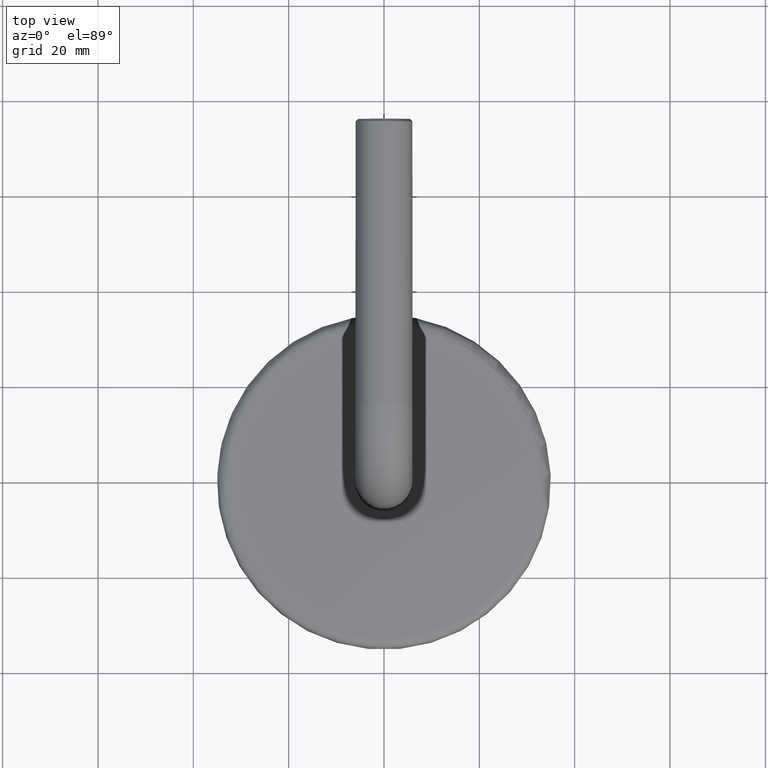
[diagram: clean part render]
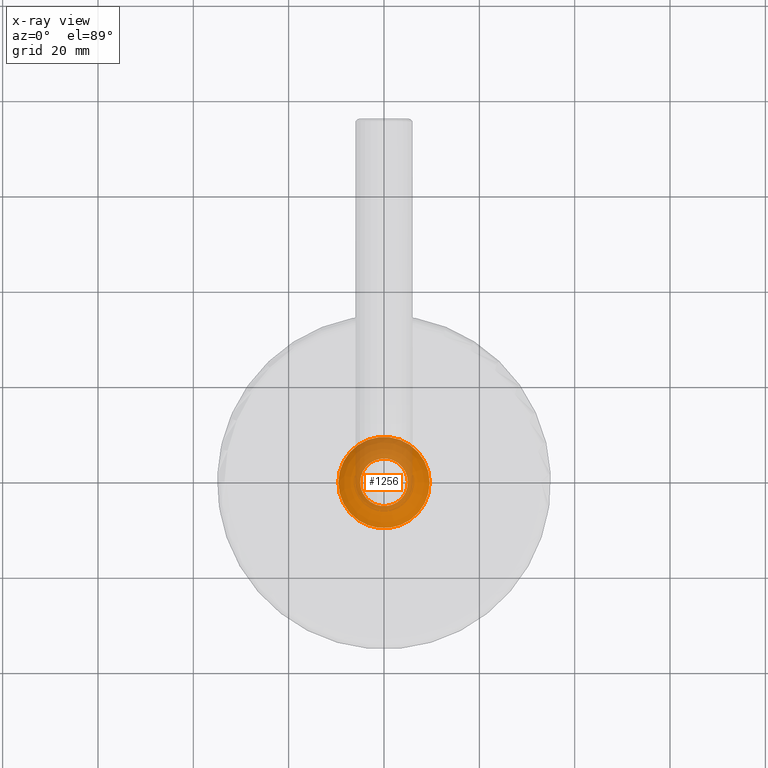
[diagram: x-ray — body ghosted, one internal face saturated and labeled with its STEP entity id]
A machine part, top view, then the same camera in x-ray: the body is ghosted and one INTERNAL B-rep face — a face not visible from any outside direction — is saturated and labeled: STEP entity #1256.
In plain terms, the highlighted toroidal blend (fillet) surface has major radius 4.2205 mm and minor (blend) radius 6.8 mm.
Its self-contained STEP definition (entity closure, byte-faithful):
#21 = EDGE_LOOP ( 'NONE', ( #5325 ) ) ;
#1021 = TOROIDAL_SURFACE ( 'NONE', #14287, 4.220464781185778100, 6.799999999999999800 ) ;
#1191 = CARTESIAN_POINT ( 'NONE',  ( 4.999999999999981300, 5.187227530428881200E-030, -4.755170230469981400 ) ) ;
#1256 = ADVANCED_FACE ( 'NONE', ( #3703, #9236 ), #1021, .T. ) ;
#1714 = CARTESIAN_POINT ( 'NONE',  ( -2.107645643391384600E-030, -4.190823558986596300E-031, 1.999999999999984900 ) ) ;
#1827 = EDGE_CURVE ( 'NONE', #13817, #13817, #8506, .T. ) ;
#3653 = DIRECTION ( 'NONE',  ( 1.053822821695700200E-030, 2.095411779493315200E-031, -1.000000000000000000 ) ) ;
#3703 = FACE_OUTER_BOUND ( 'NONE', #21, .T. ) ;
#3945 = DIRECTION ( 'NONE',  ( 1.053822821695700200E-030, 2.095411779493315200E-031, -1.000000000000000000 ) ) ;
#4124 = EDGE_LOOP ( 'NONE', ( #10773 ) ) ;
#4779 = DIRECTION ( 'NONE',  ( -1.000000000000000000, -8.381647117973246900E-031, 0.0000000000000000000 ) ) ;
#5325 = ORIENTED_EDGE ( 'NONE', *, *, #12679, .T. ) ;
#6920 = AXIS2_PLACEMENT_3D ( 'NONE', #6930, #3653, #4779 ) ;
#6930 = CARTESIAN_POINT ( 'NONE',  ( 2.309748650291931700E-030, 4.592683352314083500E-031, -2.191780821917794800 ) ) ;
#7187 = DIRECTION ( 'NONE',  ( 1.000000000000000000, 8.381647117973248700E-031, 0.0000000000000000000 ) ) ;
#7283 = DIRECTION ( 'NONE',  ( -1.000000000000000000, -8.381647117973246900E-031, -1.053822821695700200E-030 ) ) ;
#8506 = CIRCLE ( 'NONE', #6920, 9.574806341172559200 ) ;
#9236 = FACE_OUTER_BOUND ( 'NONE', #4124, .T. ) ;
#10773 = ORIENTED_EDGE ( 'NONE', *, *, #1827, .T. ) ;
#11212 = AXIS2_PLACEMENT_3D ( 'NONE', #12824, #13920, #7187 ) ;
#12224 = VERTEX_POINT ( 'NONE', #1191 ) ;
#12679 = EDGE_CURVE ( 'NONE', #12224, #12224, #14372, .T. ) ;
#12768 = CARTESIAN_POINT ( 'NONE',  ( -9.574806341172559200, -7.565996462232685800E-030, -2.191780821917794800 ) ) ;
#12824 = CARTESIAN_POINT ( 'NONE',  ( 5.011106909917265100E-030, 9.964039714422731500E-031, -4.755170230469981400 ) ) ;
#13817 = VERTEX_POINT ( 'NONE', #12768 ) ;
#13920 = DIRECTION ( 'NONE',  ( -1.053822821695700200E-030, -2.095411779493315200E-031, 1.000000000000000000 ) ) ;
#14287 = AXIS2_PLACEMENT_3D ( 'NONE', #1714, #3945, #7283 ) ;
#14372 = CIRCLE ( 'NONE', #11212, 4.999999999999981300 ) ;